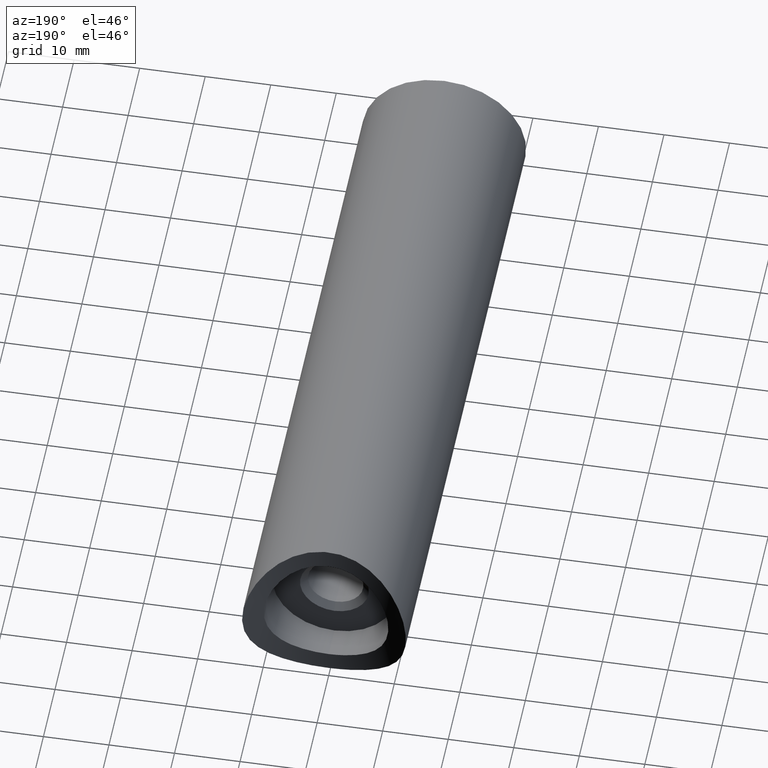
[diagram: clean part render]
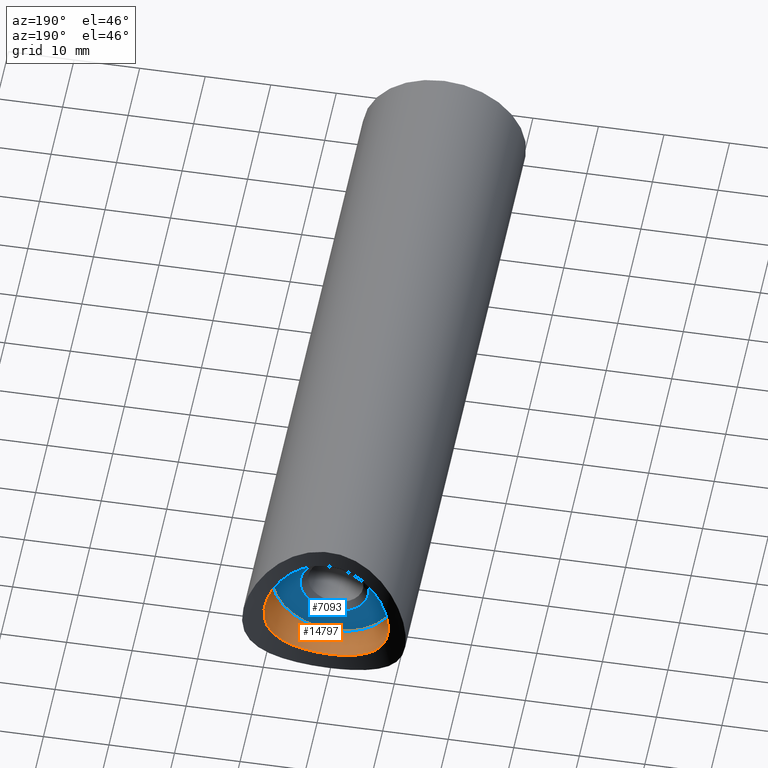
[diagram: same view with the hole feature highlighted: cylindrical wall and planar end face, labeled with their STEP entity ids]
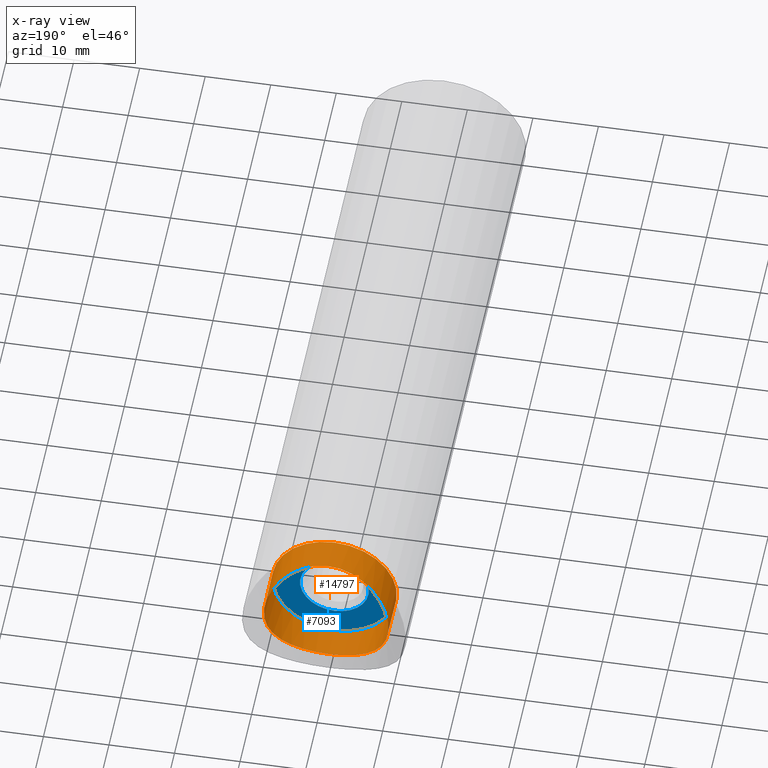
[diagram: x-ray of the same camera — body ghosted, the hole faces saturated]
A machine part, auxiliary view. The highlighted faces form one hole feature of diameter 19 mm: the cylindrical wall (entity #14797, orange) and its adjacent planar end face (entity #7093, blue) — they share a circular edge in the B-rep.
The next image is the same camera in x-ray (body ghosted, the hole faces saturated) — the bore reads through the body.
Wall:
#32 = CARTESIAN_POINT ( 'NONE',  ( -1.241044210835447581, 100.0340072933133371, 9.423906279834380229 ) ) ;
#86 = CARTESIAN_POINT ( 'NONE',  ( 8.528404042701657417, 101.7892790429360446, 4.231673509746905815 ) ) ;
#140 = CARTESIAN_POINT ( 'NONE',  ( 5.821238422975282489, 100.8079978852822904, 7.532964038835420872 ) ) ;
#195 = CARTESIAN_POINT ( 'NONE',  ( 9.423048992942408830, 102.2092824389239780, 1.247566640489276457 ) ) ;
#258 = CARTESIAN_POINT ( 'NONE',  ( -9.485394415810562307, 102.2403464257151455, -0.6132128038015943750 ) ) ;
#309 = CARTESIAN_POINT ( 'NONE',  ( -9.008791347383935388, 102.0075432672130518, -3.078500580661585495 ) ) ;
#402 = CARTESIAN_POINT ( 'NONE',  ( -7.161612749501959918, 101.2409600370262552, -6.272434933491691567 ) ) ;
#458 = CARTESIAN_POINT ( 'NONE',  ( -2.498850055899791922, 100.1388022504743276, -9.186754518107191458 ) ) ;
#1120 = DIRECTION ( 'NONE',  ( 0.000000000000000000, 0.000000000000000000, -1.000000000000000000 ) ) ;
#1170 = CARTESIAN_POINT ( 'NONE',  ( -7.539448760505734981, 101.3825100019867449, 5.812345771679482631 ) ) ;
#1172 = DIRECTION ( 'NONE',  ( 0.000000000000000000, -1.000000000000000000, 0.000000000000000000 ) ) ;
#1218 = CARTESIAN_POINT ( 'NONE',  ( 9.249883306410172423, 102.1242449124917471, -2.188136362230303167 ) ) ;
#1273 = CARTESIAN_POINT ( 'NONE',  ( 4.239501643359084859, 100.4263537308147960, 8.507201601871591023 ) ) ;
#1330 = CARTESIAN_POINT ( 'NONE',  ( 7.141446648790038765, 101.2379646963790094, -6.272460366769575302 ) ) ;
#1387 = CARTESIAN_POINT ( 'NONE',  ( 5.553601757131707117, 100.7386287035464534, -7.713820719989421093 ) ) ;
#1437 = CARTESIAN_POINT ( 'NONE',  ( -9.377648489708342083, 102.1867289891445409, -1.552339149397833573 ) ) ;
#1542 = CARTESIAN_POINT ( 'NONE',  ( -0.6374979100094602114, 100.0072300424776017, -9.483897433785996256 ) ) ;
#1591 = CARTESIAN_POINT ( 'NONE',  ( -3.093194717497067980, 100.2187053245161366, -9.004040404926804797 ) ) ;
#1916 = CYLINDRICAL_SURFACE ( 'NONE', #2750, 9.500000000000000000 ) ;
#2135 = CARTESIAN_POINT ( 'NONE',  ( 2.483532656622888801, 100.1437890303297849, -9.175016371901806522 ) ) ;
#2171 = ORIENTED_EDGE ( 'NONE', *, *, #7440, .T. ) ;
#2344 = CARTESIAN_POINT ( 'NONE',  ( -8.523264946753032589, 101.7870436127293203, 4.241084215976187011 ) ) ;
#2396 = CARTESIAN_POINT ( 'NONE',  ( -9.372074341462647951, 102.1839787277595946, 1.585149318056029433 ) ) ;
#2433 = CIRCLE ( 'NONE', #5852, 9.500000000000000000 ) ;
#2455 = CARTESIAN_POINT ( 'NONE',  ( 8.889115722851313350, 101.9531544776059349, 3.366200486887768406 ) ) ;
#2511 = CARTESIAN_POINT ( 'NONE',  ( 4.241290137965748386, 100.4204281667180680, -8.523384442685092210 ) ) ;
#2565 = CARTESIAN_POINT ( 'NONE',  ( 1.268242555074103883, 100.0287782397843017, 9.436283075953772581 ) ) ;
#2750 = AXIS2_PLACEMENT_3D ( 'NONE', #13801, #9011, #15029 ) ;
#2813 = CARTESIAN_POINT ( 'NONE',  ( -4.241558507969899416, 100.4267719539736561, -8.506182557503509045 ) ) ;
#2864 = FACE_OUTER_BOUND ( 'NONE', #5271, .T. ) ;
#3207 = ORIENTED_EDGE ( 'NONE', *, *, #3371, .F. ) ;
#3371 = EDGE_CURVE ( 'NONE', #9885, #9885, #13610, .T. ) ;
#3533 = CARTESIAN_POINT ( 'NONE',  ( 8.987441340686563862, 101.9990548893869828, -3.094183139392292503 ) ) ;
#3587 = CARTESIAN_POINT ( 'NONE',  ( 9.177520785823926275, 102.0891846464067640, 2.473947545388475611 ) ) ;
#3636 = CARTESIAN_POINT ( 'NONE',  ( -6.268116454531394766, 100.9463020527545751, 7.145311984338327704 ) ) ;
#3697 = CARTESIAN_POINT ( 'NONE',  ( 3.106146720613094381, 100.2208057480653167, 8.999094344661589417 ) ) ;
#3754 = CARTESIAN_POINT ( 'NONE',  ( -0.2966802664981191273, 99.99975701892493873, 9.500542232145482657 ) ) ;
#3905 = CARTESIAN_POINT ( 'NONE',  ( -8.531477835451079628, 101.7906568136939995, -4.224851868295540491 ) ) ;
#4478 = CARTESIAN_POINT ( 'NONE',  ( 0.6364849716512801514, 100.0000000000000142, -9.500000000000003553 ) ) ;
#4727 = CARTESIAN_POINT ( 'NONE',  ( 7.156932976606996455, 101.2393881527046062, 6.277160452372209321 ) ) ;
#4783 = CARTESIAN_POINT ( 'NONE',  ( 8.995461250118717444, 102.0028171819150060, 3.070664607080447972 ) ) ;
#4838 = CARTESIAN_POINT ( 'NONE',  ( 5.052020961380550013, 100.6090499014320159, 8.051253020657679116 ) ) ;
#4891 = CARTESIAN_POINT ( 'NONE',  ( -0.6109703282612287678, 100.0064596338708895, 9.485616245786797407 ) ) ;
#4944 = CARTESIAN_POINT ( 'NONE',  ( -5.035340712801900764, 100.6049805050354706, 8.061624747455232054 ) ) ;
#5002 = CARTESIAN_POINT ( 'NONE',  ( -9.191611527987292973, 102.0957245509379021, -2.482835001304048550 ) ) ;
#5102 = CARTESIAN_POINT ( 'NONE',  ( -4.786695643312927295, 100.5455727059054709, -8.211790614500459995 ) ) ;
#5148 = CARTESIAN_POINT ( 'NONE',  ( -9.499545963651273794, 102.2474638443376307, 0.3270111298627914609 ) ) ;
#5271 = EDGE_LOOP ( 'NONE', ( #3207 ) ) ;
#5852 = AXIS2_PLACEMENT_3D ( 'NONE', #8236, #1172, #1120 ) ;
#5857 = CARTESIAN_POINT ( 'NONE',  ( -7.151272654335864232, 101.2372867089235484, 6.283955440126949732 ) ) ;
#5908 = CARTESIAN_POINT ( 'NONE',  ( 4.783911882236790980, 100.5400140770716177, -8.230812682281843706 ) ) ;
#5960 = CARTESIAN_POINT ( 'NONE',  ( 7.531066022374991675, 101.3816711535216939, -5.798884708013996914 ) ) ;
#6013 = CARTESIAN_POINT ( 'NONE',  ( -5.545857035337324881, 100.7365458967561693, 7.719321175231829812 ) ) ;
#6050 = CARTESIAN_POINT ( 'NONE',  ( 0.000000000000000000, 100.0000000000000000, -9.500000000000000000 ) ) ;
#6070 = CARTESIAN_POINT ( 'NONE',  ( 6.936114632686590120, 101.1654766673674999, -6.498738308927976881 ) ) ;
#6126 = CARTESIAN_POINT ( 'NONE',  ( 2.439454888092384977E-16, 100.0000000000000142, -9.500000000000003553 ) ) ;
#7031 = CARTESIAN_POINT ( 'NONE',  ( 9.485210323668578525, 102.2402534056036529, 0.6173005440023987545 ) ) ;
#7089 = CARTESIAN_POINT ( 'NONE',  ( 9.171705159346393188, 102.0863865409212679, -2.495575208724467586 ) ) ;
#7140 = CARTESIAN_POINT ( 'NONE',  ( 3.380916676980516566, 100.2693003144771495, -8.883471085187816030 ) ) ;
#7200 = CARTESIAN_POINT ( 'NONE',  ( 9.500501170803753226, 102.2479426490435941, 0.2989875722069366693 ) ) ;
#7253 = CARTESIAN_POINT ( 'NONE',  ( 9.436086402327431344, 102.2152859707863399, -1.266254751419230828 ) ) ;
#7294 = EDGE_LOOP ( 'NONE', ( #2171 ) ) ;
#7308 = CARTESIAN_POINT ( 'NONE',  ( -0.3182424858256396316, 100.0000000000000000, -9.500000000000003553 ) ) ;
#7440 = EDGE_CURVE ( 'NONE', #8574, #8574, #2433, .T. ) ;
#7464 = CARTESIAN_POINT ( 'NONE',  ( -8.234017047857244975, 101.6608911779194671, -4.777917511863169153 ) ) ;
#7508 = CARTESIAN_POINT ( 'NONE',  ( -7.549941817363897911, 101.3865149743936058, -5.798785308061709109 ) ) ;
#7657 = FACE_OUTER_BOUND ( 'NONE', #7294, .T. ) ;
#8235 = CARTESIAN_POINT ( 'NONE',  ( 8.232966139314019216, 101.6603976859088192, -4.780229286873895589 ) ) ;
#8236 = CARTESIAN_POINT ( 'NONE',  ( 0.000000000000000000, 95.00000000000000000, 0.000000000000000000 ) ) ;
#8285 = CARTESIAN_POINT ( 'NONE',  ( -4.225099167284110280, 100.4234110484659226, 8.514381308321466335 ) ) ;
#8336 = CARTESIAN_POINT ( 'NONE',  ( 4.784411152046595284, 100.5450450634854178, 8.213115316802943155 ) ) ;
#8390 = CARTESIAN_POINT ( 'NONE',  ( 8.236300695480341716, 101.6618554377151042, 4.774009413465759799 ) ) ;
#8439 = CARTESIAN_POINT ( 'NONE',  ( -1.556016142728092522, 100.0549198610633113, 9.376965037390704083 ) ) ;
#8495 = CARTESIAN_POINT ( 'NONE',  ( -6.288358279751227187, 100.9488636476148713, -7.147635085411126354 ) ) ;
#8574 = VERTEX_POINT ( 'NONE', #14305 ) ;
#8648 = CARTESIAN_POINT ( 'NONE',  ( -3.957896532553863533, 100.3706769194830031, -8.641915547555107935 ) ) ;
#9011 = DIRECTION ( 'NONE',  ( -0.000000000000000000, -1.000000000000000000, -0.000000000000000000 ) ) ;
#9232 = CARTESIAN_POINT ( 'NONE',  ( 2.180007451754458092, 100.1101400047593302, -9.251770381341167138 ) ) ;
#9432 = CARTESIAN_POINT ( 'NONE',  ( -8.224636934294045076, 101.6569310308566827, 4.793954346976834202 ) ) ;
#9484 = CARTESIAN_POINT ( 'NONE',  ( -9.184515875549772446, 102.0923042183369489, 2.507702418852466142 ) ) ;
#9537 = CARTESIAN_POINT ( 'NONE',  ( -4.771340228747763312, 100.5420130734883770, 8.220733815080754070 ) ) ;
#9595 = CARTESIAN_POINT ( 'NONE',  ( -2.480002748189263251, 100.1364773211384858, 9.192074007778979094 ) ) ;
#9646 = CARTESIAN_POINT ( 'NONE',  ( 0.6440078716250059454, 100.0005061284498566, 9.498870532990867588 ) ) ;
#9702 = CARTESIAN_POINT ( 'NONE',  ( -1.269004279125535151, 100.0356542695671891, -9.420209247113366047 ) ) ;
#9885 = VERTEX_POINT ( 'NONE', #6050 ) ;
#9894 = CARTESIAN_POINT ( 'NONE',  ( -5.813209838135548146, 100.8058150261788342, -7.538751087053099376 ) ) ;
#10623 = CARTESIAN_POINT ( 'NONE',  ( -9.001374561828280108, 102.0040583183764227, 3.099692997253427951 ) ) ;
#10673 = CARTESIAN_POINT ( 'NONE',  ( -9.420069888945111103, 102.2078030936080495, 1.269692253303263740 ) ) ;
#10730 = CARTESIAN_POINT ( 'NONE',  ( -5.792371582879176195, 100.8051478095163702, 7.536126238788064313 ) ) ;
#10783 = CARTESIAN_POINT ( 'NONE',  ( 9.376533632650533079, 102.1861817047665255, 1.558327773880290756 ) ) ;
#10834 = CARTESIAN_POINT ( 'NONE',  ( 6.277918532790936368, 100.9493442591767121, -7.136688198618155177 ) ) ;
#10888 = CARTESIAN_POINT ( 'NONE',  ( -9.424141013075175266, 102.2098252497230391, -1.238669985068937329 ) ) ;
#10937 = CARTESIAN_POINT ( 'NONE',  ( -1.579914827002742994, 100.0567163217006623, -9.372915591419527459 ) ) ;
#11533 = CARTESIAN_POINT ( 'NONE',  ( 2.439454888092384977E-16, 100.0000000000000142, -9.500000000000003553 ) ) ;
#11637 = CARTESIAN_POINT ( 'NONE',  ( 1.260772883389786436, 100.0285815267200036, -9.436694466367734790 ) ) ;
#11788 = CARTESIAN_POINT ( 'NONE',  ( 5.803194281932893439, 100.8082307005046800, -7.527782918947442781 ) ) ;
#11837 = CARTESIAN_POINT ( 'NONE',  ( -9.483617628874213779, 102.2394552632821245, 0.6409616213275688423 ) ) ;
#11894 = CARTESIAN_POINT ( 'NONE',  ( -6.498324285833158243, 101.0192062320199256, 6.936604400835414630 ) ) ;
#11950 = CARTESIAN_POINT ( 'NONE',  ( 7.716146283417984364, 101.4532145896129123, -5.550375429143452166 ) ) ;
#12006 = CARTESIAN_POINT ( 'NONE',  ( -3.076036494159134715, 100.2161753894414886, 9.009907955385285661 ) ) ;
#12781 = CARTESIAN_POINT ( 'NONE',  ( 3.084761112431325447, 100.2234367987745571, -8.990723483703080277 ) ) ;
#12997 = CARTESIAN_POINT ( 'NONE',  ( 2.510787202390620809, 100.1399663432594593, 9.184107201701420919 ) ) ;
#13048 = CARTESIAN_POINT ( 'NONE',  ( 7.552430576256035089, 101.3874652183536540, 5.795567911521924742 ) ) ;
#13097 = CARTESIAN_POINT ( 'NONE',  ( 6.292490753768118950, 100.9502524691348953, 7.143458062466177871 ) ) ;
#13148 = CARTESIAN_POINT ( 'NONE',  ( 9.253770878175846093, 102.1261332273026312, 2.171518581384475510 ) ) ;
#13201 = CARTESIAN_POINT ( 'NONE',  ( -9.500434944336921816, 102.2479094526320438, -0.3000760953482105031 ) ) ;
#13401 = CARTESIAN_POINT ( 'NONE',  ( -5.049978156022087994, 100.6085753779429410, -8.052438436112677067 ) ) ;
#13610 = B_SPLINE_CURVE_WITH_KNOTS ( 'NONE', 3,
 ( #11533, #4478, #11637, #9232, #2135, #12781, #7140, #2511, #5908, #1387, #11788, #10834, #14110, #6070, #1330, #5960, #11950, #8235, #14321, #14157, #3533, #7089, #1218, #7253, #14214, #7200, #7031, #195, #10783, #13148, #3587, #4783, #2455, #86, #8390, #13048, #4727, #13097, #140, #4838, #8336, #1273, #14270, #3697, #12997, #2565, #9646, #3754, #4891, #32, #8439, #9595, #12006, #15285, #8285, #9537, #4944, #6013, #10730, #3636, #11894, #5857, #1170, #9432, #2344, #10623, #9484, #2396, #10673, #11837, #5148, #13201, #258, #10888, #1437, #5002, #309, #3905, #7464, #7508, #402, #8495, #9894, #13401, #5102, #2813, #8648, #1591, #458, #10937, #9702, #1542, #7308, #6126 ),
 .UNSPECIFIED., .T., .F.,
 ( 4, 2, 2, 2, 2, 2, 2, 2, 2, 2, 2, 2, 2, 2, 2, 2, 2, 2, 2, 2, 2, 2, 2, 2, 2, 2, 2, 2, 2, 2, 2, 2, 2, 2, 2, 2, 2, 2, 2, 2, 2, 2, 2, 2, 2, 2, 4 ),
 ( 0.000000000000000000, 0.001880675673092450755, 0.002821013509638676565, 0.003761351346184901509, 0.005642027019277351396, 0.006582364855823578942, 0.007522702692369806488, 0.008463040528916034033, 0.009403378365462259844, 0.01128405403855472361, 0.01222439187510095983, 0.01316472971164719605, 0.01504540538473966675, 0.01598574322128590297, 0.01692608105783213746, 0.01786641889437837194, 0.01880675673092460642, 0.02068743240401707192, 0.02256810807710953048, 0.02444878375020199252, 0.02538912158674822353, 0.02632945942329445455, 0.02821013509638691311, 0.03009081076947937514, 0.03103114860602560268, 0.03197148644257184064, 0.03385216211566430267, 0.03479249995221053715, 0.03573283778875676470, 0.03667317562530299918, 0.03761351346184922673, 0.03949418913494168876, 0.04137486480803414385, 0.04325554048112659894, 0.04419587831767281955, 0.04513621615421904709, 0.04607655399076527464, 0.04701689182731149524, 0.04889756750040395034, 0.05077824317349640543, 0.05265891884658886746, 0.05453959451968132255, 0.05547993235622755703, 0.05642027019277377764, 0.05830094586586622579, 0.05924128370241246028, 0.06018162153895868088 ),
 .UNSPECIFIED. ) ;
#13801 = CARTESIAN_POINT ( 'NONE',  ( 0.000000000000000000, 121.2000000000000028, 0.000000000000000000 ) ) ;
#14110 = CARTESIAN_POINT ( 'NONE',  ( 6.504350108057891156, 101.0211684918236443, -6.930852435126900524 ) ) ;
#14157 = CARTESIAN_POINT ( 'NONE',  ( 8.881500644286067114, 101.9496472766038693, -3.385870436265248529 ) ) ;
#14214 = CARTESIAN_POINT ( 'NONE',  ( 9.498959620060526632, 102.2471699353895502, -0.6445389015180864600 ) ) ;
#14270 = CARTESIAN_POINT ( 'NONE',  ( 3.960850411950924244, 100.3712854755329715, 8.640435500174294958 ) ) ;
#14305 = CARTESIAN_POINT ( 'NONE',  ( 0.000000000000000000, 95.00000000000000000, -9.500000000000000000 ) ) ;
#14321 = CARTESIAN_POINT ( 'NONE',  ( 8.523924850247393437, 101.7873433084028818, -4.239504024039886687 ) ) ;
#14797 = ADVANCED_FACE ( 'NONE', ( #2864, #7657 ), #1916, .F. ) ;
#15029 = DIRECTION ( 'NONE',  ( 0.000000000000000000, 0.000000000000000000, -1.000000000000000000 ) ) ;
#15285 = CARTESIAN_POINT ( 'NONE',  ( -3.941259122051929964, 100.3675205392430030, 8.649513685885526826 ) ) ;
End face:
#7 = DIRECTION ( 'NONE',  ( 0.000000000000000000, -1.000000000000000000, 0.000000000000000000 ) ) ;
#168 = CARTESIAN_POINT ( 'NONE',  ( 0.000000000000000000, 95.00000000000000000, 0.000000000000000000 ) ) ;
#1120 = DIRECTION ( 'NONE',  ( 0.000000000000000000, 0.000000000000000000, -1.000000000000000000 ) ) ;
#1172 = DIRECTION ( 'NONE',  ( 0.000000000000000000, -1.000000000000000000, 0.000000000000000000 ) ) ;
#2433 = CIRCLE ( 'NONE', #5852, 9.500000000000000000 ) ;
#2941 = CIRCLE ( 'NONE', #8640, 5.249999999999976907 ) ;
#3729 = FACE_BOUND ( 'NONE', #10522, .T. ) ;
#4812 = DIRECTION ( 'NONE',  ( 0.000000000000000000, 0.000000000000000000, -1.000000000000000000 ) ) ;
#5716 = DIRECTION ( 'NONE',  ( 0.000000000000000000, -1.000000000000000000, 0.000000000000000000 ) ) ;
#5772 = CARTESIAN_POINT ( 'NONE',  ( 0.000000000000000000, 95.00000000000000000, 0.000000000000000000 ) ) ;
#5852 = AXIS2_PLACEMENT_3D ( 'NONE', #8236, #1172, #1120 ) ;
#7093 = ADVANCED_FACE ( 'NONE', ( #3729, #12229 ), #8036, .F. ) ;
#7440 = EDGE_CURVE ( 'NONE', #8574, #8574, #2433, .T. ) ;
#8036 = PLANE ( 'NONE',  #10829 ) ;
#8236 = CARTESIAN_POINT ( 'NONE',  ( 0.000000000000000000, 95.00000000000000000, 0.000000000000000000 ) ) ;
#8425 = ORIENTED_EDGE ( 'NONE', *, *, #7440, .F. ) ;
#8574 = VERTEX_POINT ( 'NONE', #14305 ) ;
#8640 = AXIS2_PLACEMENT_3D ( 'NONE', #168, #7, #4812 ) ;
#9417 = EDGE_LOOP ( 'NONE', ( #8425 ) ) ;
#9683 = EDGE_CURVE ( 'NONE', #10047, #10047, #2941, .T. ) ;
#10047 = VERTEX_POINT ( 'NONE', #14356 ) ;
#10522 = EDGE_LOOP ( 'NONE', ( #14889 ) ) ;
#10829 = AXIS2_PLACEMENT_3D ( 'NONE', #5772, #5716, #13974 ) ;
#12229 = FACE_OUTER_BOUND ( 'NONE', #9417, .T. ) ;
#13974 = DIRECTION ( 'NONE',  ( 0.000000000000000000, -0.000000000000000000, -1.000000000000000000 ) ) ;
#14305 = CARTESIAN_POINT ( 'NONE',  ( 0.000000000000000000, 95.00000000000000000, -9.500000000000000000 ) ) ;
#14356 = CARTESIAN_POINT ( 'NONE',  ( 0.000000000000000000, 95.00000000000000000, -5.249999999999976907 ) ) ;
#14889 = ORIENTED_EDGE ( 'NONE', *, *, #9683, .T. ) ;